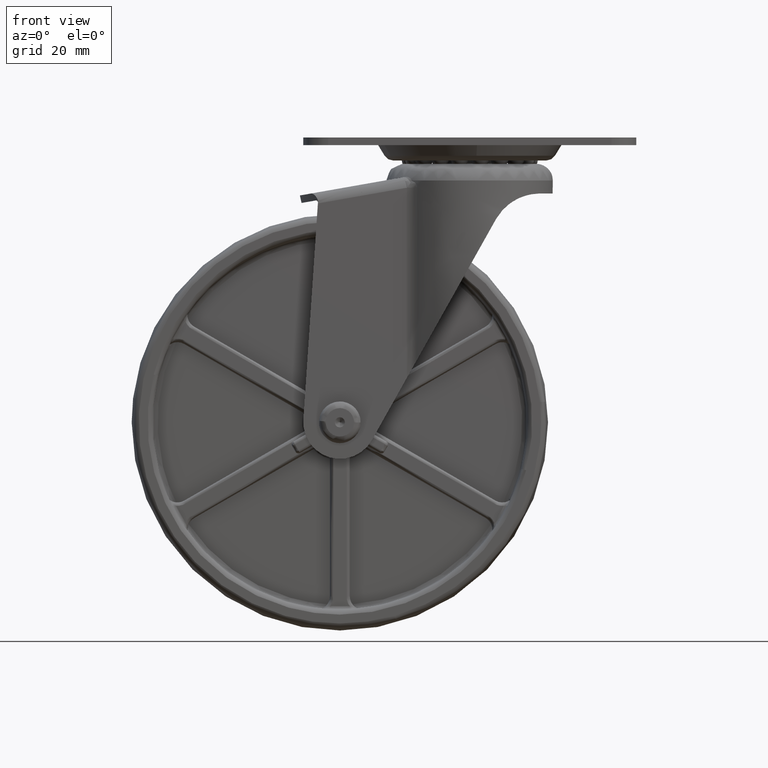
[diagram: clean part render]
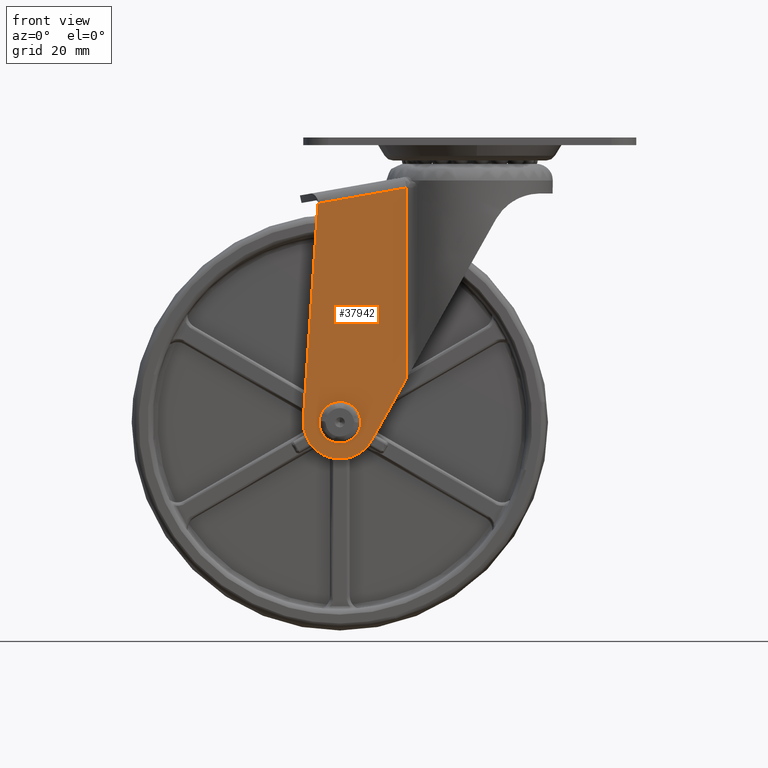
[diagram: same view with one face highlighted and labeled with its STEP entity id]
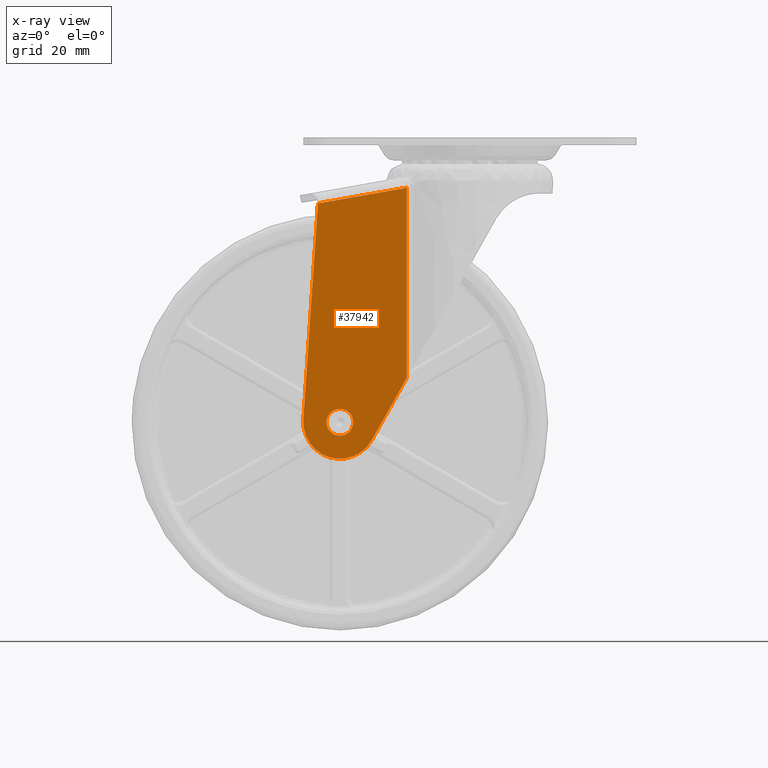
[diagram: x-ray of the same camera — body ghosted, the highlighted face saturated]
A machine part, front view. The second image highlights one B-rep face of the part: STEP entity #37942.
The next image is the same camera in x-ray: the body ghosted, the highlighted face saturated — about 0% of this face is hidden behind the body in this view.
In plain terms, the highlighted face is a freeform B-spline surface patch.
Its self-contained STEP definition (entity closure, byte-faithful):
#33987=CARTESIAN_POINT('',(3.972038105448116,-18.300000000000001,-0.472136938682135));
#33988=VERTEX_POINT('',#33987);
#33994=CARTESIAN_POINT('',(0.0,-18.300000000000001,4.0));
#33995=VERTEX_POINT('',#33994);
#33996=CARTESIAN_POINT('',(3.972038105448115,-18.299999999999994,-0.472136938682135));
#33997=CARTESIAN_POINT('',(4.0,-18.300000000000001,-0.236896478663324));
#33998=CARTESIAN_POINT('',(4.0,-18.300000000000001,0.0));
#33999=CARTESIAN_POINT('',(4.000000000000000,-18.300000000000001,4.000000000000000));
#34000=CARTESIAN_POINT('',(0.0,-18.300000000000001,4.0));
#34008=(BOUNDED_CURVE()B_SPLINE_CURVE(2,(#33996,#33997,#33998,#33999,#34000),.UNSPECIFIED.,.F.,.U.)B_SPLINE_CURVE_WITH_KNOTS((3,2,3),(0.229562473510955,0.250000000000000,0.500000000000000),.UNSPECIFIED.)CURVE()GEOMETRIC_REPRESENTATION_ITEM()RATIONAL_B_SPLINE_CURVE((0.956026754178695,0.976055948328154,1.0,0.707106781186548,1.0))REPRESENTATION_ITEM(''));
#34009=EDGE_CURVE('',#33988,#33995,#34008,.T.);
#34011=CARTESIAN_POINT('',(-3.992539193649605,-18.300000000000001,0.244194158758472));
#34012=VERTEX_POINT('',#34011);
#34013=CARTESIAN_POINT('',(0.0,-18.300000000000001,4.0));
#34014=CARTESIAN_POINT('',(-3.762824266453736,-18.300000000000001,4.0));
#34015=CARTESIAN_POINT('',(-3.992539193649604,-18.299999999999997,0.244194158758472));
#34023=(BOUNDED_CURVE()B_SPLINE_CURVE(2,(#34013,#34014,#34015),.UNSPECIFIED.,.F.,.U.)B_SPLINE_CURVE_WITH_KNOTS((3,3),(0.500000000000000,0.739332962188461),.UNSPECIFIED.)CURVE()GEOMETRIC_REPRESENTATION_ITEM()RATIONAL_B_SPLINE_CURVE((1.0,0.719603993345853,0.976072041558525))REPRESENTATION_ITEM(''));
#34024=EDGE_CURVE('',#33995,#34012,#34023,.T.);
#34098=CARTESIAN_POINT('',(0.0,-18.300000000000001,-4.0));
#34099=VERTEX_POINT('',#34098);
#34100=CARTESIAN_POINT('',(-3.992539193649605,-18.299999999999997,0.244194158758472));
#34101=CARTESIAN_POINT('',(-4.000000000000001,-18.299999999999997,0.122211053815136));
#34102=CARTESIAN_POINT('',(-4.0,-18.300000000000001,0.0));
#34103=CARTESIAN_POINT('',(-4.000000000000000,-18.300000000000001,-4.000000000000000));
#34104=CARTESIAN_POINT('',(0.0,-18.300000000000001,-4.0));
#34112=(BOUNDED_CURVE()B_SPLINE_CURVE(2,(#34100,#34101,#34102,#34103,#34104),.UNSPECIFIED.,.F.,.U.)B_SPLINE_CURVE_WITH_KNOTS((3,2,3),(0.739332962188461,0.750000000000000,1.0),.UNSPECIFIED.)CURVE()GEOMETRIC_REPRESENTATION_ITEM()RATIONAL_B_SPLINE_CURVE((0.976072041558526,0.987502787840695,1.0,0.707106781186548,1.0))REPRESENTATION_ITEM(''));
#34113=EDGE_CURVE('',#34012,#34099,#34112,.T.);
#34115=CARTESIAN_POINT('',(0.0,-18.300000000000001,-4.0));
#34116=CARTESIAN_POINT('',(3.552698103706208,-18.299999999999997,-4.000000000000000));
#34117=CARTESIAN_POINT('',(3.972038105448115,-18.299999999999994,-0.472136938682135));
#34125=(BOUNDED_CURVE()B_SPLINE_CURVE(2,(#34115,#34116,#34117),.UNSPECIFIED.,.F.,.U.)B_SPLINE_CURVE_WITH_KNOTS((3,3),(0.0,0.229562473510955),.UNSPECIFIED.)CURVE()GEOMETRIC_REPRESENTATION_ITEM()RATIONAL_B_SPLINE_CURVE((1.0,0.731050832858394,0.956026754178695))REPRESENTATION_ITEM(''));
#34126=EDGE_CURVE('',#34099,#33988,#34125,.T.);
#36416=CARTESIAN_POINT('',(20.102645687821799,-18.300000000000001,70.409651613913397));
#36417=VERTEX_POINT('',#36416);
#36496=CARTESIAN_POINT('',(20.102645687821848,-18.300000000000001,13.331871285881981));
#36497=VERTEX_POINT('',#36496);
#36514=CARTESIAN_POINT('',(20.102645687821799,-18.300000000000001,13.331871285881981));
#36515=CARTESIAN_POINT('',(20.102645687821799,-18.300000000000001,70.409651613913397));
#36516=QUASI_UNIFORM_CURVE('',1,(#36514,#36515),.UNSPECIFIED.,.F.,.U.);
#36517=EDGE_CURVE('',#36497,#36417,#36516,.T.);
#37125=CARTESIAN_POINT('',(-6.599504122434430,-18.300000000000001,65.701342289656097));
#37126=VERTEX_POINT('',#37125);
#37140=CARTESIAN_POINT('',(20.102645687821799,-18.300000000000001,70.409651613913397));
#37141=CARTESIAN_POINT('',(-6.599504122434430,-18.300000000000001,65.701342289656097));
#37142=QUASI_UNIFORM_CURVE('',1,(#37140,#37141),.UNSPECIFIED.,.F.,.U.);
#37143=EDGE_CURVE('',#36417,#37126,#37142,.T.);
#37475=CARTESIAN_POINT('',(-10.975132623484621,-18.300000000000001,0.739232546349898));
#37476=VERTEX_POINT('',#37475);
#37482=CARTESIAN_POINT('',(-10.975132623484621,-18.300000000000001,0.739232546349898));
#37483=CARTESIAN_POINT('',(-6.599504122434430,-18.300000000000001,65.701342289656097));
#37484=QUASI_UNIFORM_CURVE('',1,(#37482,#37483),.UNSPECIFIED.,.F.,.U.);
#37485=EDGE_CURVE('',#37476,#37126,#37484,.T.);
#37555=CARTESIAN_POINT('',(9.591182999999999,-18.300000000000001,-5.386123999999881));
#37556=VERTEX_POINT('',#37555);
#37557=CARTESIAN_POINT('',(20.102645687821848,-18.300000000000001,13.331871285881981));
#37558=CARTESIAN_POINT('',(9.591182999999999,-18.300000000000001,-5.386123999999881));
#37559=QUASI_UNIFORM_CURVE('',1,(#37557,#37558),.UNSPECIFIED.,.F.,.U.);
#37560=EDGE_CURVE('',#36497,#37556,#37559,.T.);
#37799=CARTESIAN_POINT('',(-10.975132623484621,-18.300000000000001,0.739232546349904));
#37800=CARTESIAN_POINT('',(-11.565987163036397,-18.300000000000004,-8.032800415653183));
#37801=CARTESIAN_POINT('',(-3.139859606060602,-18.300000000000001,-10.542391172519871));
#37802=CARTESIAN_POINT('',(5.286267950915184,-18.300000000000004,-13.051981929386562));
#37803=CARTESIAN_POINT('',(9.591183000000005,-18.300000000000001,-5.386123999999884));
#37811=(BOUNDED_CURVE()B_SPLINE_CURVE(2,(#37799,#37800,#37801,#37802,#37803),.UNSPECIFIED.,.F.,.U.)B_SPLINE_CURVE_WITH_KNOTS((3,2,3),(0.0,0.500000000000000,1.0),.UNSPECIFIED.)CURVE()GEOMETRIC_REPRESENTATION_ITEM()RATIONAL_B_SPLINE_CURVE((1.0,0.781149641739966,1.0,0.781149641739966,1.0))REPRESENTATION_ITEM(''));
#37812=EDGE_CURVE('',#37476,#37556,#37811,.T.);
#37924=CARTESIAN_POINT('',(-12.550617420779730,-18.300000000000001,74.475959820395701));
#37925=CARTESIAN_POINT('',(-12.550617420779730,-18.300000000000001,-15.064201582158059));
#37926=CARTESIAN_POINT('',(21.656082810777921,-18.300000000000001,74.475959820395701));
#37927=CARTESIAN_POINT('',(21.656082810777921,-18.300000000000001,-15.064201582158059));
#37928=B_SPLINE_SURFACE_WITH_KNOTS('',1,1,((#37924,#37926),(#37925,#37927)),.UNSPECIFIED.,.F.,.F.,.U.,(2,2),(2,2),(0.0,89.540161402553764),(0.0,34.206700231557647),.UNSPECIFIED.);
#37929=ORIENTED_EDGE('',*,*,#37560,.F.);
#37930=ORIENTED_EDGE('',*,*,#36517,.T.);
#37931=ORIENTED_EDGE('',*,*,#37143,.T.);
#37932=ORIENTED_EDGE('',*,*,#37485,.F.);
#37933=ORIENTED_EDGE('',*,*,#37812,.T.);
#37934=EDGE_LOOP('',(#37929,#37930,#37931,#37932,#37933));
#37935=FACE_OUTER_BOUND('',#37934,.T.);
#37936=ORIENTED_EDGE('',*,*,#34024,.F.);
#37937=ORIENTED_EDGE('',*,*,#34009,.F.);
#37938=ORIENTED_EDGE('',*,*,#34126,.F.);
#37939=ORIENTED_EDGE('',*,*,#34113,.F.);
#37940=EDGE_LOOP('',(#37936,#37937,#37938,#37939));
#37941=FACE_BOUND('',#37940,.T.);
#37942=ADVANCED_FACE('',(#37935,#37941),#37928,.T.);